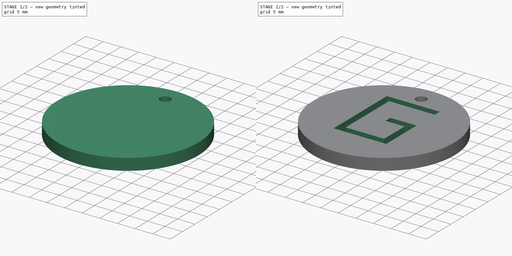
[diagram: build sequence overview — one tinted view per stage of 2, left to right]
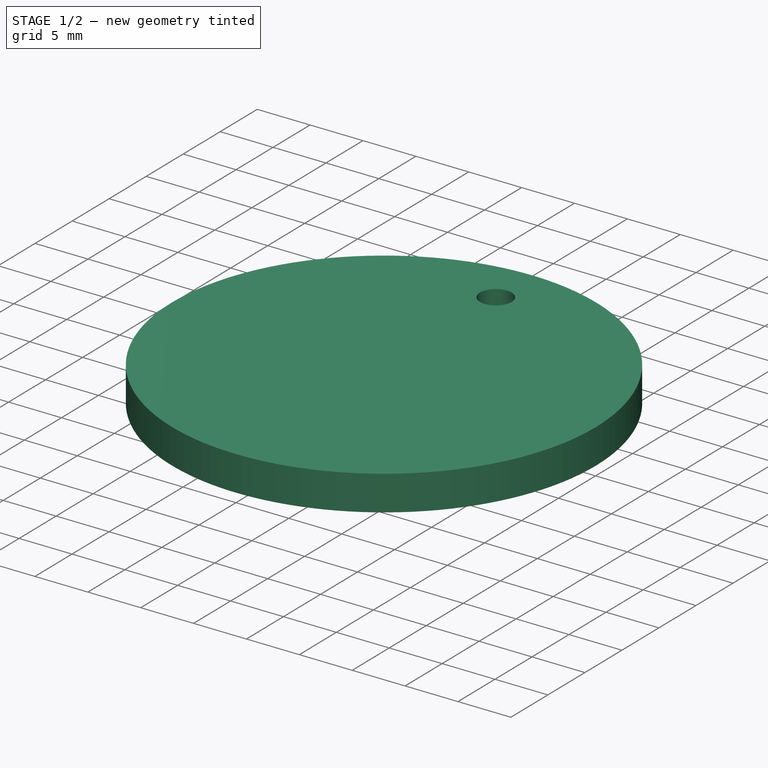
[diagram: stage 1 of 2 — iso view after this stage's code; geometry added in this stage tinted green]
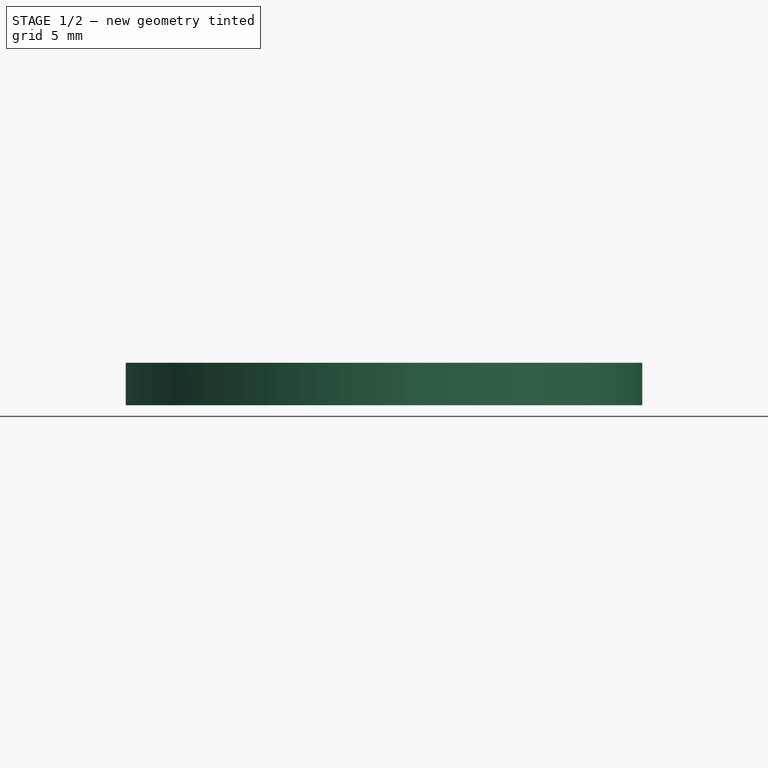
[diagram: stage 1 of 2 — front view after this stage's code; geometry added in this stage tinted green]
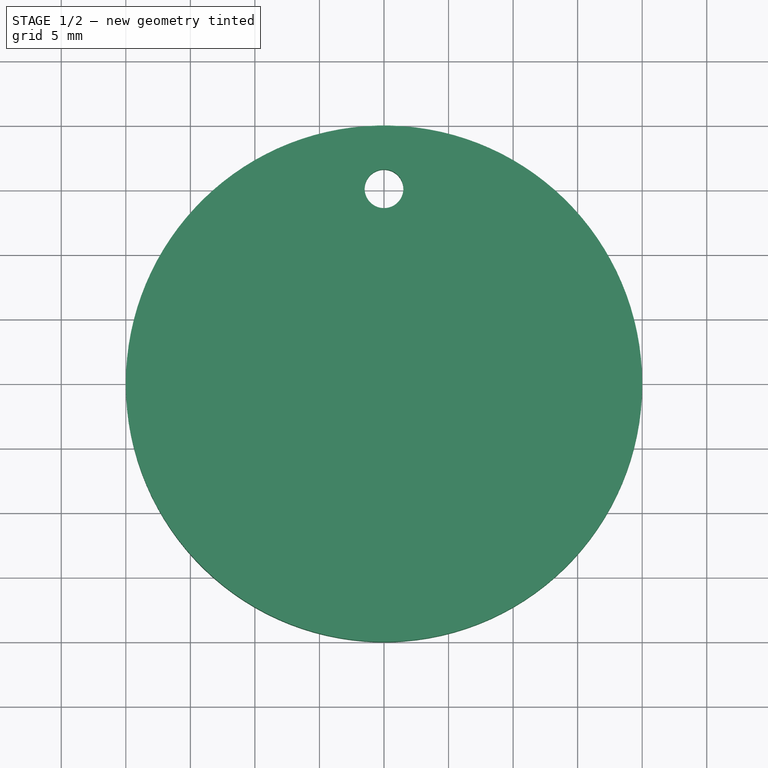
[diagram: stage 1 of 2 — top view after this stage's code; geometry added in this stage tinted green]
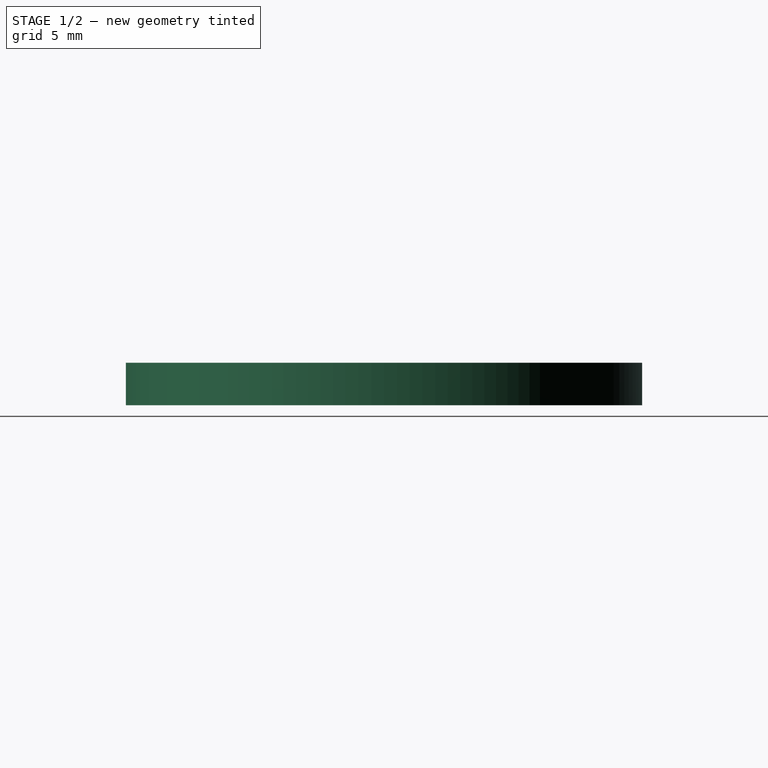
[diagram: stage 1 of 2 — right view after this stage's code; geometry added in this stage tinted green]
FCSTD DOCUMENT  (FreeCAD 0.16R)
Label: llavero_hw_gacs
License: CreativeCommons Attribution-ShareAlike
LicenseURL: http://creativecommons.org/licenses/by-sa/4.0/
objects: Sketcher::SketchObject×2, PartDesign::Pocket×2, Part::Feature×2, App::DocumentObjectGroup×2, Part::Cylinder×1
note: 9 computed .brp shape members not serialized (recipe doc carries the construction recipe); baked Part::Feature solids carry a one-line shape summary decoded from their .brp

FEATURE [Part::Cylinder] Cylinder  label="casino-chip-main body"
  Angle = 360
  Height = 3.3
  Radius = 20
FEATURE [Sketcher::SketchObject] Sketch  label="hole-sketch"
  Placement = pos=(0,0,3.3) rot=(0,0,1;0rad)
  Support = -> Cylinder [Face2]
  sketch-geometry (1):
    g0: Circle CenterX=0 CenterY=15.1 CenterZ=0 NormalX=0 NormalY=0 NormalZ=1 Radius=1.5
  constraints (3):
    c: Radius(g0) = 1.5
    c: PointOnObject(g0,g-2)
    c: DistanceY(g-1,g0) = 15.1
FEATURE [PartDesign::Pocket] Pocket  label="casino-chip-key-chain"
  Length = 5
  Sketch = -> Sketch
  Type = 1
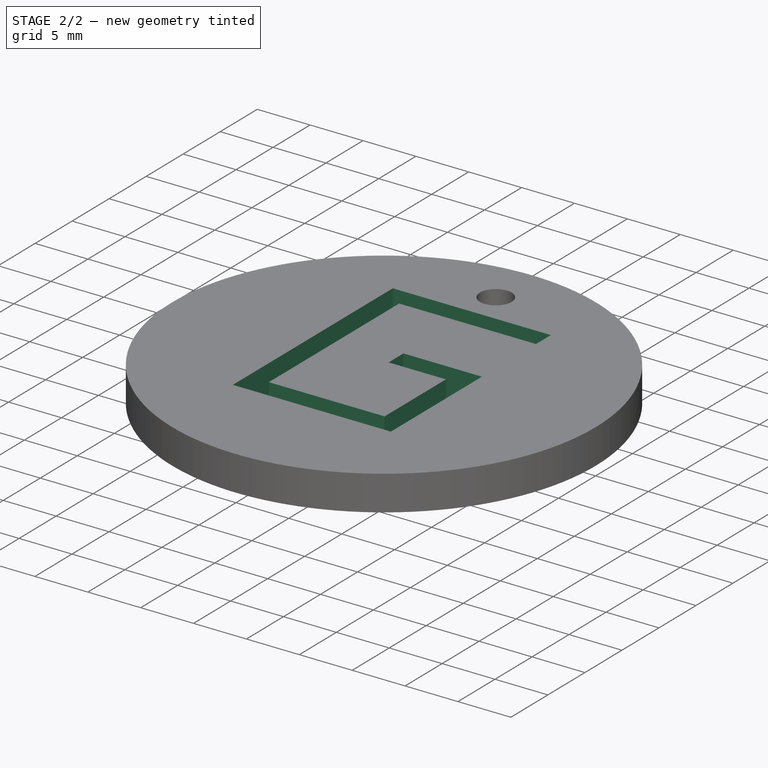
[diagram: stage 2 of 2 — iso view after this stage's code; geometry added in this stage tinted green]
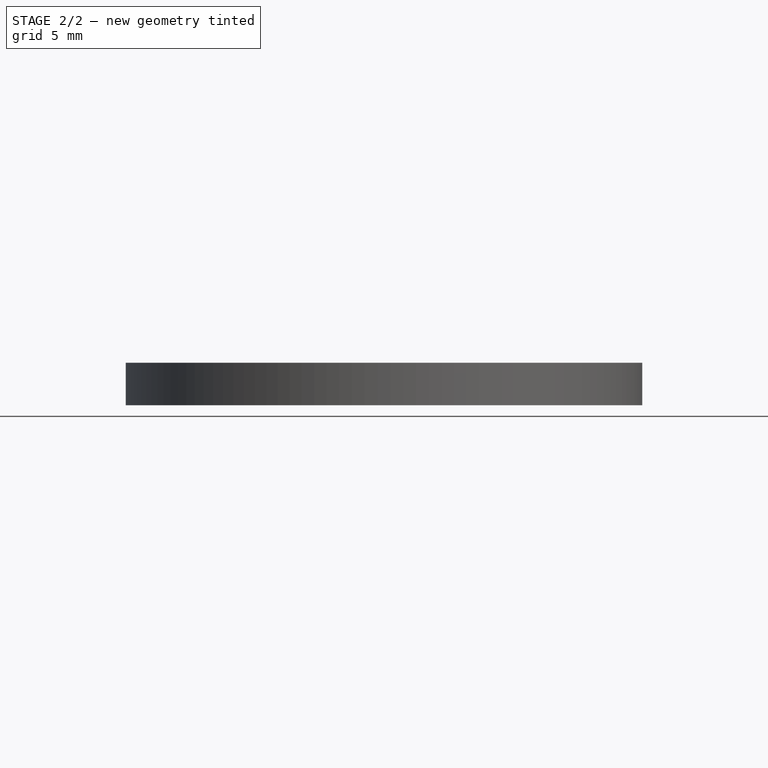
[diagram: stage 2 of 2 — front view after this stage's code; geometry added in this stage tinted green]
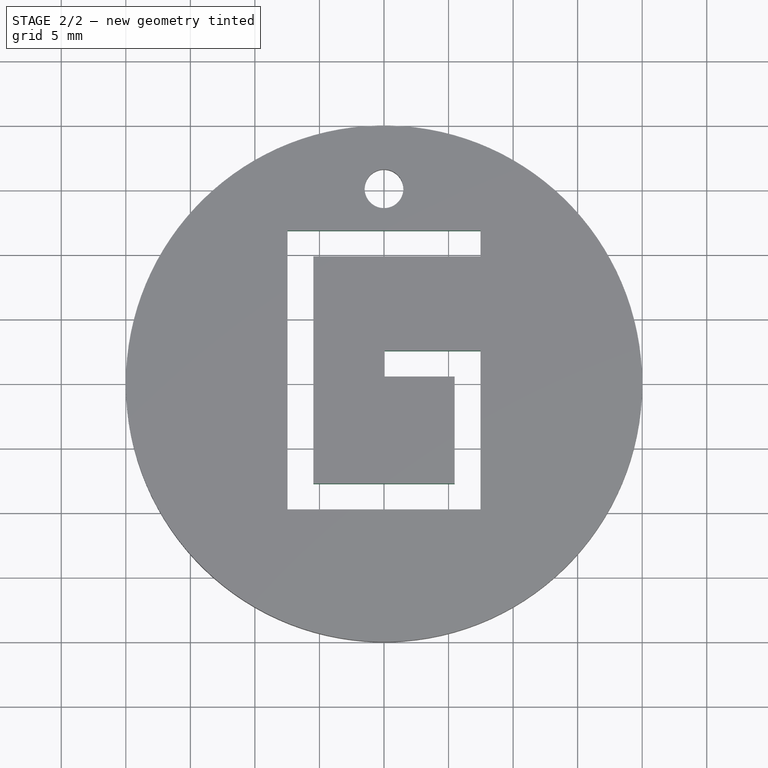
[diagram: stage 2 of 2 — top view after this stage's code; geometry added in this stage tinted green]
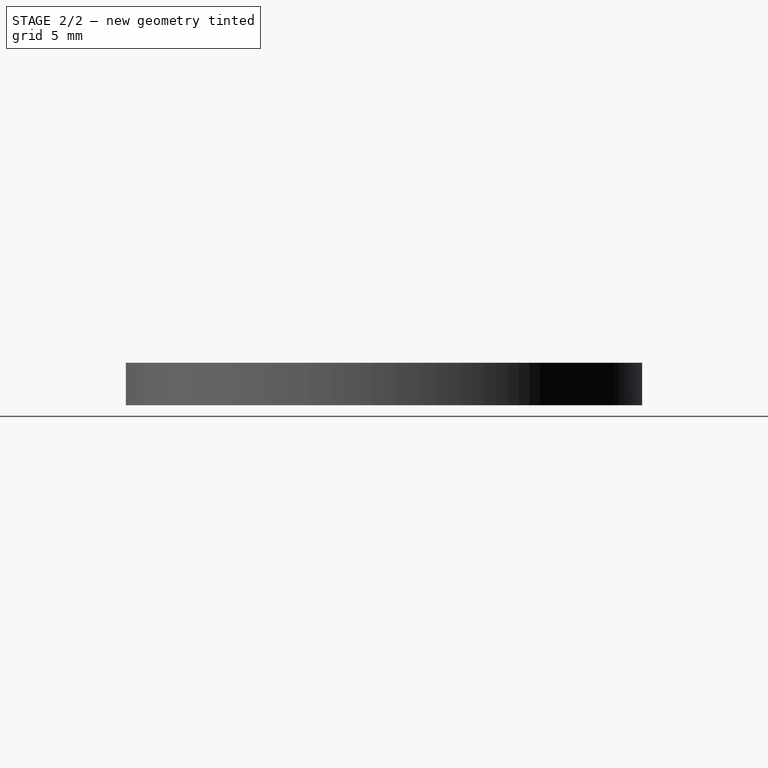
[diagram: stage 2 of 2 — right view after this stage's code; geometry added in this stage tinted green]
FEATURE [Part::Feature] Sweep  label="key-ring-model-1"
  Placement = pos=(-1.2,24.7546,1.6391) rot=(0.333333,0.881918,0.333333;1.69612rad)
  shape: bbox 3.31 x 27.02 x 26.33 mm, 4 faces (baked)
FEATURE [Part::Feature] Cut  label="key-model-1"
  Placement = pos=(-5.46976,31.0266,0) rot=(0,0,1;0.517888rad)
  shape: bbox 49.82 x 36.6 x 2.3 mm, 44 faces (baked)
FEATURE [App::DocumentObjectGroup] Group  label="Assembly"
  Group = -> [Sweep,Cut]
FEATURE [Sketcher::SketchObject] Sketch001
  Placement = pos=(0,0,3.3) rot=(0,0,1;0rad)
  Support = -> Pocket [Face2]
  sketch-geometry (16):
    g0: LineSegment StartX=7.47166 StartY=11.8591 StartZ=0 EndX=-7.47166 EndY=11.8591 EndZ=0
    g1: LineSegment StartX=-7.47166 StartY=11.8591 StartZ=0 EndX=-7.47166 EndY=-9.73844 EndZ=0
    g2: LineSegment StartX=-7.47166 StartY=-9.73844 StartZ=0 EndX=7.47166 EndY=-9.73844 EndZ=0
    g3: LineSegment StartX=7.47166 StartY=-9.73844 StartZ=0 EndX=7.47166 EndY=2.55272 EndZ=0
    g4: LineSegment StartX=7.47166 StartY=2.55272 StartZ=0 EndX=0.0506971 EndY=2.55272 EndZ=0
    g5: LineSegment StartX=0.0506971 StartY=2.55272 StartZ=0 EndX=0.0506971 EndY=0.552716 EndZ=0
    g6: LineSegment StartX=0.0506971 StartY=0.552716 StartZ=0 EndX=5.47166 EndY=0.552716 EndZ=0
    g7: LineSegment StartX=5.47166 StartY=0.552716 StartZ=0 EndX=5.47166 EndY=-7.73844 EndZ=0
    g8: LineSegment StartX=5.47166 StartY=-7.73844 StartZ=0 EndX=-5.47166 EndY=-7.73844 EndZ=0
    g9: LineSegment StartX=-5.47166 StartY=-7.73844 StartZ=0 EndX=-5.47166 EndY=9.85909 EndZ=0
    g10: LineSegment StartX=-5.47166 StartY=9.85909 StartZ=0 EndX=7.47166 EndY=9.85909 EndZ=0
    g11: LineSegment StartX=7.47166 StartY=9.85909 StartZ=0 EndX=7.47166 EndY=11.8591 EndZ=0
    g12: LineSegment [constr] StartX=5.47166 StartY=0.552716 StartZ=0 EndX=7.47166 EndY=2.55272 EndZ=0
    g13: LineSegment [constr] StartX=5.47166 StartY=-7.73844 StartZ=0 EndX=7.47166 EndY=-9.73844 EndZ=0
    g14: LineSegment [constr] StartX=-7.47166 StartY=-9.73844 StartZ=0 EndX=-5.47166 EndY=-7.73844 EndZ=0
    g15: LineSegment [constr] StartX=-7.47166 StartY=11.8591 StartZ=0 EndX=-5.47166 EndY=9.85909 EndZ=0
  constraints (38):
    c: Coincident(g0,g1)
    c: Coincident(g1,g2)
    c: Coincident(g2,g3)
    c: Coincident(g3,g4)
    c: Coincident(g4,g5)
    c: Coincident(g5,g6)
    c: Coincident(g6,g7)
    c: Coincident(g7,g8)
    c: Coincident(g8,g9)
    c: Coincident(g9,g10)
    c: Coincident(g10,g11)
    c: Parallel(g11,g5)
    c: Equal(g2,g0)
    c: Perpendicular(g10,g11)
    c: Coincident(g0,g11)
    c: Perpendicular(g10,g9)
    c: Perpendicular(g3,g4)
    c: Perpendicular(g2,g3)
    c: Perpendicular(g2,g1)
    c: Perpendicular(g0,g1)
    c: Perpendicular(g9,g8)
    c: Perpendicular(g11,g0)
    c: Equal(g11,g5)
    c: Perpendicular(g6,g5)
    c: Symmetric(g7,g8,g-2)
    c: Coincident(g15,g0)
    c: Coincident(g12,g6)
    c: Coincident(g3,g12)
    c: Equal(g13,g12)
    c: Equal(g12,g14)
    c: Equal(g14,g15)
    c: Coincident(g14,g8)
    c: Coincident(g14,g1)
    c: Coincident(g15,g9)
    c: Coincident(g13,g7)
    c: Coincident(g13,g2)
    c: DistanceY(g10,g0) = 2
    c: DistanceX(g1,g8) = 2
FEATURE [PartDesign::Pocket] Pocket001
  Length = 5
  Sketch = -> Sketch001
  Type = 1
FEATURE [App::DocumentObjectGroup] Group001  label="Casino-chip-src"
  Group = -> [Cylinder,Pocket,Pocket001]
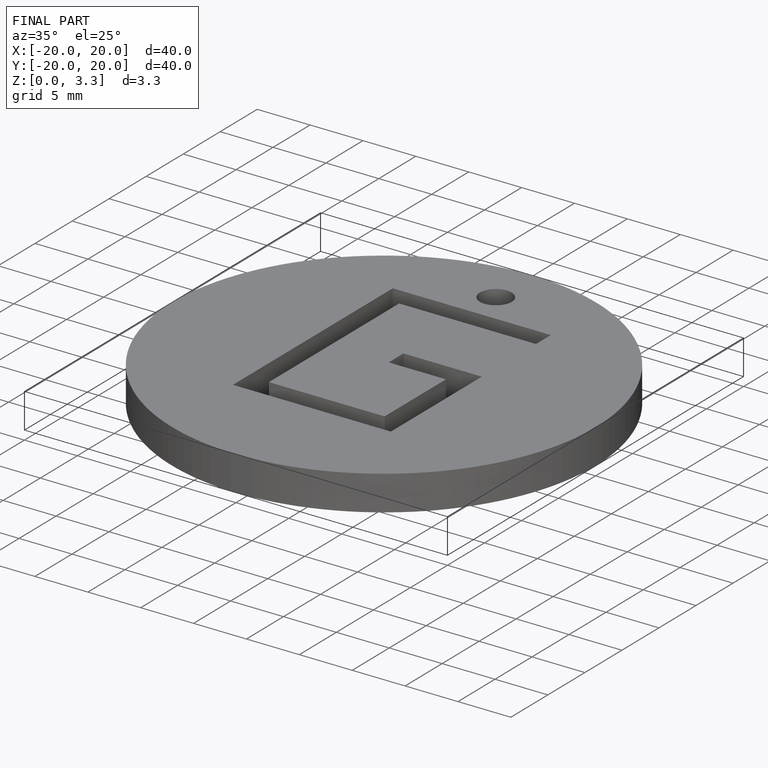
[diagram: finished part — iso view with bounding-box wireframe]
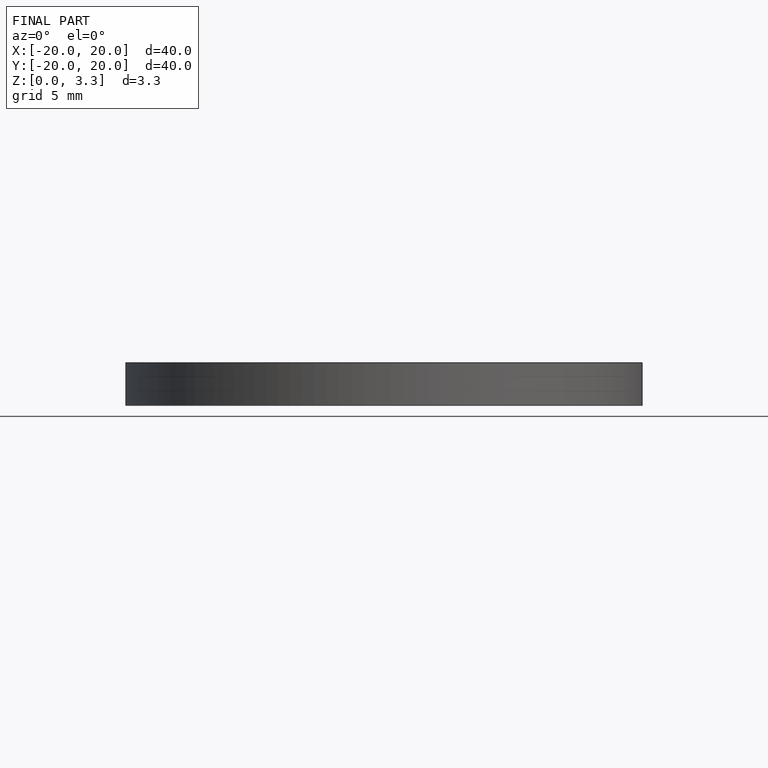
[diagram: finished part — front view with bounding-box wireframe]
